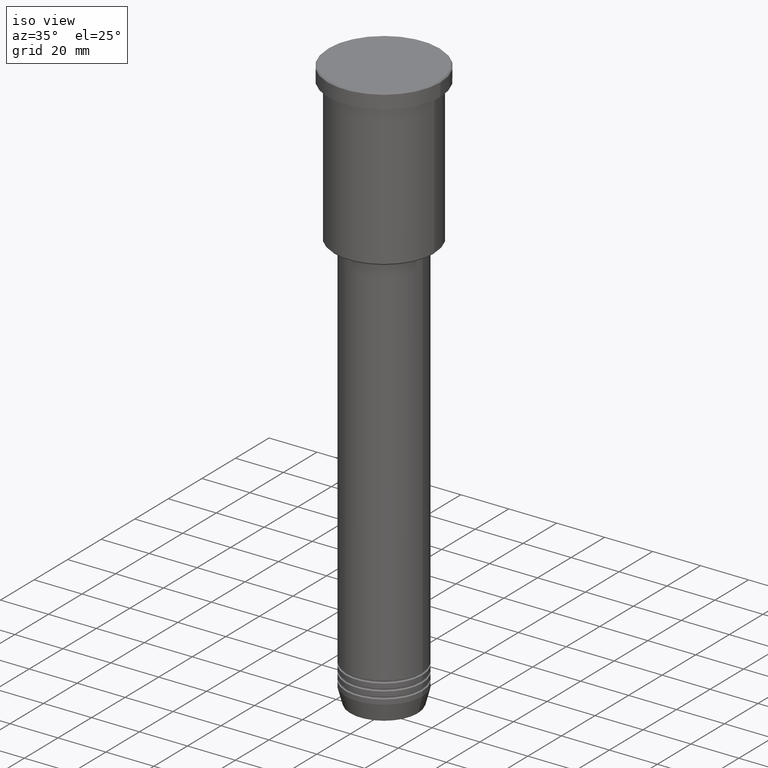
[diagram: clean part render]
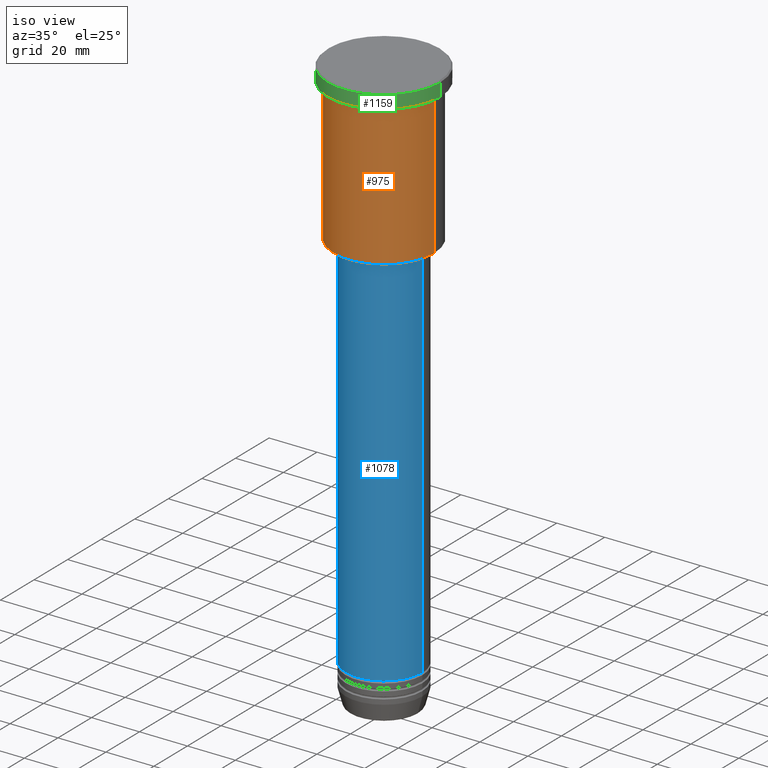
[diagram: same view with three faces highlighted in distinct colors, each labeled with its STEP entity id]
A machine part, iso view with three faces highlighted in distinct colors.
Their STEP definitions:

[orange] entity #975 — the highlighted cylindrical surface (partial cylindrical patch) has radius 21 mm, axis along (-0, -0, 1).
#27 = DIRECTION ( 'NONE',  ( 1.000000000000000000, 0.000000000000000000, 0.000000000000000000 ) ) ;
#42 = VECTOR ( 'NONE', #887, 1000.000000000000000 ) ;
#100 = DIRECTION ( 'NONE',  ( -0.000000000000000000, -0.000000000000000000, 1.000000000000000000 ) ) ;
#106 = AXIS2_PLACEMENT_3D ( 'NONE', #264, #176, #628 ) ;
#153 = CARTESIAN_POINT ( 'NONE',  ( 21.00000000000000000, 0.000000000000000000, -6.999999999999994671 ) ) ;
#176 = DIRECTION ( 'NONE',  ( -0.000000000000000000, -0.000000000000000000, 1.000000000000000000 ) ) ;
#194 = ORIENTED_EDGE ( 'NONE', *, *, #335, .F. ) ;
#214 = VERTEX_POINT ( 'NONE', #352 ) ;
#263 = EDGE_CURVE ( 'NONE', #214, #666, #557, .T. ) ;
#264 = CARTESIAN_POINT ( 'NONE',  ( 0.000000000000000000, 0.000000000000000000, -65.49999999999994316 ) ) ;
#278 = AXIS2_PLACEMENT_3D ( 'NONE', #386, #561, #27 ) ;
#282 = DIRECTION ( 'NONE',  ( -0.000000000000000000, -0.000000000000000000, 1.000000000000000000 ) ) ;
#335 = EDGE_CURVE ( 'NONE', #214, #1048, #1105, .T. ) ;
#347 = CIRCLE ( 'NONE', #1018, 21.00000000000000000 ) ;
#352 = CARTESIAN_POINT ( 'NONE',  ( -21.00000000000000000, 2.571758278209441661E-15, -65.49999999999994316 ) ) ;
#386 = CARTESIAN_POINT ( 'NONE',  ( 0.000000000000000000, 0.000000000000000000, 0.000000000000000000 ) ) ;
#415 = EDGE_CURVE ( 'NONE', #1048, #992, #347, .T. ) ;
#469 = FACE_OUTER_BOUND ( 'NONE', #1160, .T. ) ;
#513 = ORIENTED_EDGE ( 'NONE', *, *, #1128, .T. ) ;
#557 = CIRCLE ( 'NONE', #106, 21.00000000000000000 ) ;
#561 = DIRECTION ( 'NONE',  ( -0.000000000000000000, -0.000000000000000000, 1.000000000000000000 ) ) ;
#575 = VECTOR ( 'NONE', #282, 1000.000000000000000 ) ;
#623 = CARTESIAN_POINT ( 'NONE',  ( -21.00000000000000000, 2.571758278209441661E-15, 0.000000000000000000 ) ) ;
#628 = DIRECTION ( 'NONE',  ( -1.000000000000000000, 0.000000000000000000, 0.000000000000000000 ) ) ;
#666 = VERTEX_POINT ( 'NONE', #1020 ) ;
#834 = CYLINDRICAL_SURFACE ( 'NONE', #278, 21.00000000000000000 ) ;
#887 = DIRECTION ( 'NONE',  ( -0.000000000000000000, -0.000000000000000000, 1.000000000000000000 ) ) ;
#913 = LINE ( 'NONE', #1096, #575 ) ;
#919 = CARTESIAN_POINT ( 'NONE',  ( 0.000000000000000000, 0.000000000000000000, -6.999999999999994671 ) ) ;
#929 = ORIENTED_EDGE ( 'NONE', *, *, #263, .T. ) ;
#975 = ADVANCED_FACE ( 'NONE', ( #469 ), #834, .T. ) ;
#992 = VERTEX_POINT ( 'NONE', #153 ) ;
#1018 = AXIS2_PLACEMENT_3D ( 'NONE', #919, #100, #1055 ) ;
#1020 = CARTESIAN_POINT ( 'NONE',  ( 21.00000000000000000, 0.000000000000000000, -65.49999999999994316 ) ) ;
#1048 = VERTEX_POINT ( 'NONE', #1068 ) ;
#1055 = DIRECTION ( 'NONE',  ( 1.000000000000000000, 0.000000000000000000, 0.000000000000000000 ) ) ;
#1068 = CARTESIAN_POINT ( 'NONE',  ( -21.00000000000000000, 2.571758278209441661E-15, -6.999999999999994671 ) ) ;
#1077 = ORIENTED_EDGE ( 'NONE', *, *, #415, .F. ) ;
#1096 = CARTESIAN_POINT ( 'NONE',  ( 21.00000000000000000, 0.000000000000000000, 0.000000000000000000 ) ) ;
#1105 = LINE ( 'NONE', #623, #42 ) ;
#1128 = EDGE_CURVE ( 'NONE', #666, #992, #913, .T. ) ;
#1160 = EDGE_LOOP ( 'NONE', ( #194, #929, #513, #1077 ) ) ;

[blue] entity #1078 — the highlighted cylindrical surface (partial cylindrical patch) has radius 16 mm, axis along (-0, -0, 1).
#3 = EDGE_CURVE ( 'NONE', #647, #993, #567, .T. ) ;
#38 = DIRECTION ( 'NONE',  ( -0.000000000000000000, -0.000000000000000000, 1.000000000000000000 ) ) ;
#67 = VECTOR ( 'NONE', #1146, 1000.000000000000000 ) ;
#152 = DIRECTION ( 'NONE',  ( -0.000000000000000000, -0.000000000000000000, 1.000000000000000000 ) ) ;
#172 = EDGE_LOOP ( 'NONE', ( #326, #525, #1154, #1086 ) ) ;
#237 = DIRECTION ( 'NONE',  ( 1.000000000000000000, 0.000000000000000000, 0.000000000000000000 ) ) ;
#251 = DIRECTION ( 'NONE',  ( -0.000000000000000000, -0.000000000000000000, 1.000000000000000000 ) ) ;
#296 = CARTESIAN_POINT ( 'NONE',  ( 16.00000000000000000, 0.000000000000000000, -67.00000000000000000 ) ) ;
#324 = CARTESIAN_POINT ( 'NONE',  ( 0.000000000000000000, 0.000000000000000000, -67.00000000000000000 ) ) ;
#326 = ORIENTED_EDGE ( 'NONE', *, *, #3, .F. ) ;
#359 = CARTESIAN_POINT ( 'NONE',  ( 0.000000000000000000, 0.000000000000000000, 0.000000000000000000 ) ) ;
#367 = CIRCLE ( 'NONE', #783, 16.00000000000000000 ) ;
#405 = CYLINDRICAL_SURFACE ( 'NONE', #660, 16.00000000000000000 ) ;
#417 = CARTESIAN_POINT ( 'NONE',  ( -16.00000000000000000, 1.959434878635765131E-15, -67.00000000000000000 ) ) ;
#458 = EDGE_CURVE ( 'NONE', #474, #748, #1066, .T. ) ;
#470 = EDGE_CURVE ( 'NONE', #647, #474, #367, .T. ) ;
#474 = VERTEX_POINT ( 'NONE', #504 ) ;
#504 = CARTESIAN_POINT ( 'NONE',  ( 16.00000000000000000, 0.000000000000000000, -224.9999999999999716 ) ) ;
#514 = CARTESIAN_POINT ( 'NONE',  ( 0.000000000000000000, 0.000000000000000000, -224.9999999999999716 ) ) ;
#525 = ORIENTED_EDGE ( 'NONE', *, *, #470, .T. ) ;
#558 = EDGE_CURVE ( 'NONE', #993, #748, #1151, .T. ) ;
#567 = LINE ( 'NONE', #1041, #857 ) ;
#577 = DIRECTION ( 'NONE',  ( -0.000000000000000000, -0.000000000000000000, 1.000000000000000000 ) ) ;
#639 = AXIS2_PLACEMENT_3D ( 'NONE', #324, #152, #1060 ) ;
#647 = VERTEX_POINT ( 'NONE', #908 ) ;
#660 = AXIS2_PLACEMENT_3D ( 'NONE', #359, #577, #237 ) ;
#748 = VERTEX_POINT ( 'NONE', #296 ) ;
#783 = AXIS2_PLACEMENT_3D ( 'NONE', #514, #251, #882 ) ;
#857 = VECTOR ( 'NONE', #38, 1000.000000000000000 ) ;
#882 = DIRECTION ( 'NONE',  ( 1.000000000000000000, 0.000000000000000000, 0.000000000000000000 ) ) ;
#908 = CARTESIAN_POINT ( 'NONE',  ( -16.00000000000000000, 1.959434878635765131E-15, -224.9999999999999716 ) ) ;
#993 = VERTEX_POINT ( 'NONE', #417 ) ;
#1041 = CARTESIAN_POINT ( 'NONE',  ( -16.00000000000000000, 1.959434878635765131E-15, 0.000000000000000000 ) ) ;
#1060 = DIRECTION ( 'NONE',  ( 1.000000000000000000, 0.000000000000000000, 0.000000000000000000 ) ) ;
#1066 = LINE ( 'NONE', #1167, #67 ) ;
#1078 = ADVANCED_FACE ( 'NONE', ( #1179 ), #405, .T. ) ;
#1086 = ORIENTED_EDGE ( 'NONE', *, *, #558, .F. ) ;
#1146 = DIRECTION ( 'NONE',  ( -0.000000000000000000, -0.000000000000000000, 1.000000000000000000 ) ) ;
#1151 = CIRCLE ( 'NONE', #639, 16.00000000000000000 ) ;
#1154 = ORIENTED_EDGE ( 'NONE', *, *, #458, .T. ) ;
#1167 = CARTESIAN_POINT ( 'NONE',  ( 16.00000000000000000, 0.000000000000000000, 0.000000000000000000 ) ) ;
#1179 = FACE_OUTER_BOUND ( 'NONE', #172, .T. ) ;

[green] entity #1159 — the highlighted cylindrical surface (partial cylindrical patch) has radius 23.5 mm, axis along (-0, -0, 1).
#62 = EDGE_LOOP ( 'NONE', ( #609, #285, #1101, #365 ) ) ;
#66 = EDGE_CURVE ( 'NONE', #909, #449, #789, .T. ) ;
#76 = DIRECTION ( 'NONE',  ( -0.000000000000000000, -0.000000000000000000, 1.000000000000000000 ) ) ;
#93 = LINE ( 'NONE', #717, #1016 ) ;
#140 = CIRCLE ( 'NONE', #765, 23.50000000000000000 ) ;
#167 = VERTEX_POINT ( 'NONE', #406 ) ;
#168 = DIRECTION ( 'NONE',  ( 1.000000000000000000, 0.000000000000000000, 0.000000000000000000 ) ) ;
#187 = DIRECTION ( 'NONE',  ( 0.000000000000000000, 0.000000000000000000, -1.000000000000000000 ) ) ;
#188 = DIRECTION ( 'NONE',  ( 1.000000000000000000, 0.000000000000000000, 0.000000000000000000 ) ) ;
#213 = AXIS2_PLACEMENT_3D ( 'NONE', #1021, #638, #188 ) ;
#218 = EDGE_CURVE ( 'NONE', #1137, #167, #93, .T. ) ;
#227 = CARTESIAN_POINT ( 'NONE',  ( -23.50000000000000000, 2.877919977996280320E-15, 0.000000000000000000 ) ) ;
#273 = FACE_OUTER_BOUND ( 'NONE', #62, .T. ) ;
#285 = ORIENTED_EDGE ( 'NONE', *, *, #338, .T. ) ;
#338 = EDGE_CURVE ( 'NONE', #909, #1137, #1080, .T. ) ;
#365 = ORIENTED_EDGE ( 'NONE', *, *, #862, .T. ) ;
#406 = CARTESIAN_POINT ( 'NONE',  ( 23.50000000000000000, 0.000000000000000000, -0.5000000000000281997 ) ) ;
#449 = VERTEX_POINT ( 'NONE', #875 ) ;
#462 = CARTESIAN_POINT ( 'NONE',  ( 0.000000000000000000, 0.000000000000000000, -0.5000000000000281997 ) ) ;
#609 = ORIENTED_EDGE ( 'NONE', *, *, #66, .F. ) ;
#630 = DIRECTION ( 'NONE',  ( 1.000000000000000000, 0.000000000000000000, 0.000000000000000000 ) ) ;
#638 = DIRECTION ( 'NONE',  ( -0.000000000000000000, -0.000000000000000000, 1.000000000000000000 ) ) ;
#661 = CARTESIAN_POINT ( 'NONE',  ( -23.50000000000000000, 2.877919977996280320E-15, -5.999999999999994671 ) ) ;
#717 = CARTESIAN_POINT ( 'NONE',  ( 23.50000000000000000, 0.000000000000000000, 0.000000000000000000 ) ) ;
#765 = AXIS2_PLACEMENT_3D ( 'NONE', #462, #187, #630 ) ;
#789 = LINE ( 'NONE', #227, #799 ) ;
#799 = VECTOR ( 'NONE', #977, 1000.000000000000000 ) ;
#862 = EDGE_CURVE ( 'NONE', #167, #449, #140, .T. ) ;
#875 = CARTESIAN_POINT ( 'NONE',  ( -23.50000000000000000, 2.877919977996280320E-15, -0.5000000000000281997 ) ) ;
#900 = CARTESIAN_POINT ( 'NONE',  ( 0.000000000000000000, 0.000000000000000000, -5.999999999999994671 ) ) ;
#909 = VERTEX_POINT ( 'NONE', #661 ) ;
#977 = DIRECTION ( 'NONE',  ( -0.000000000000000000, -0.000000000000000000, 1.000000000000000000 ) ) ;
#1007 = CYLINDRICAL_SURFACE ( 'NONE', #213, 23.50000000000000000 ) ;
#1013 = CARTESIAN_POINT ( 'NONE',  ( 23.50000000000000000, 0.000000000000000000, -5.999999999999994671 ) ) ;
#1016 = VECTOR ( 'NONE', #1097, 1000.000000000000000 ) ;
#1021 = CARTESIAN_POINT ( 'NONE',  ( 0.000000000000000000, 0.000000000000000000, 0.000000000000000000 ) ) ;
#1080 = CIRCLE ( 'NONE', #1150, 23.50000000000000000 ) ;
#1097 = DIRECTION ( 'NONE',  ( -0.000000000000000000, -0.000000000000000000, 1.000000000000000000 ) ) ;
#1101 = ORIENTED_EDGE ( 'NONE', *, *, #218, .T. ) ;
#1137 = VERTEX_POINT ( 'NONE', #1013 ) ;
#1150 = AXIS2_PLACEMENT_3D ( 'NONE', #900, #76, #168 ) ;
#1159 = ADVANCED_FACE ( 'NONE', ( #273 ), #1007, .T. ) ;